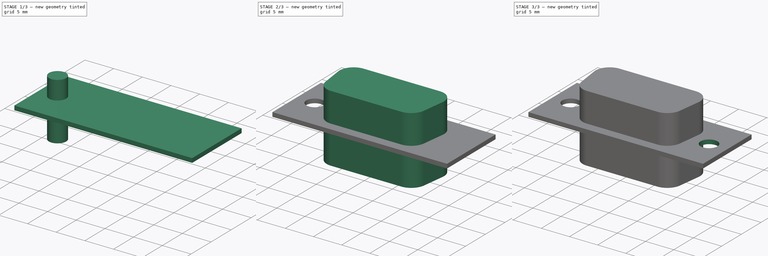
[diagram: build sequence overview — one tinted view per stage of 3, left to right]
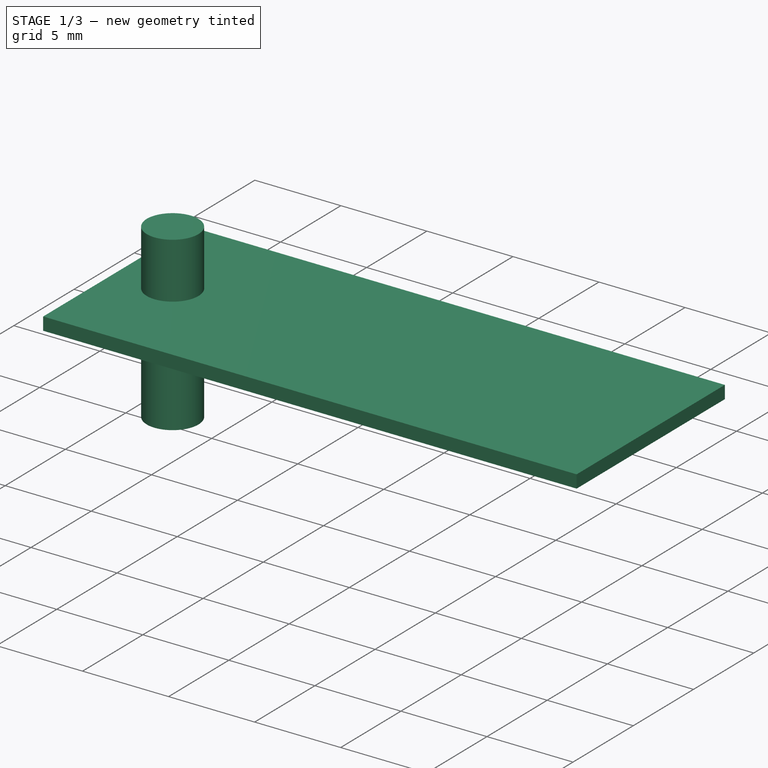
[diagram: stage 1 of 3 — iso view after this stage's code; geometry added in this stage tinted green]
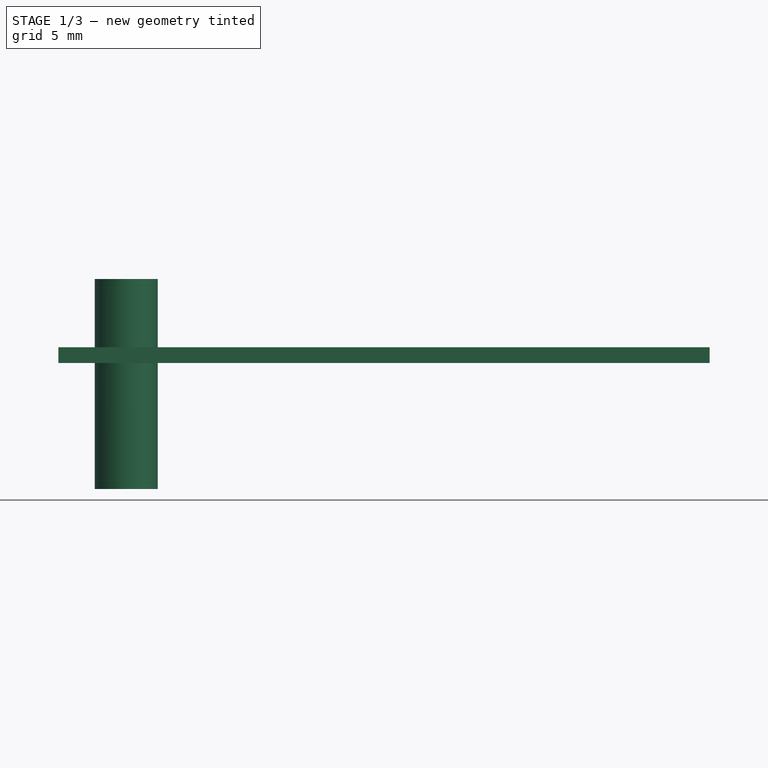
[diagram: stage 1 of 3 — front view after this stage's code; geometry added in this stage tinted green]
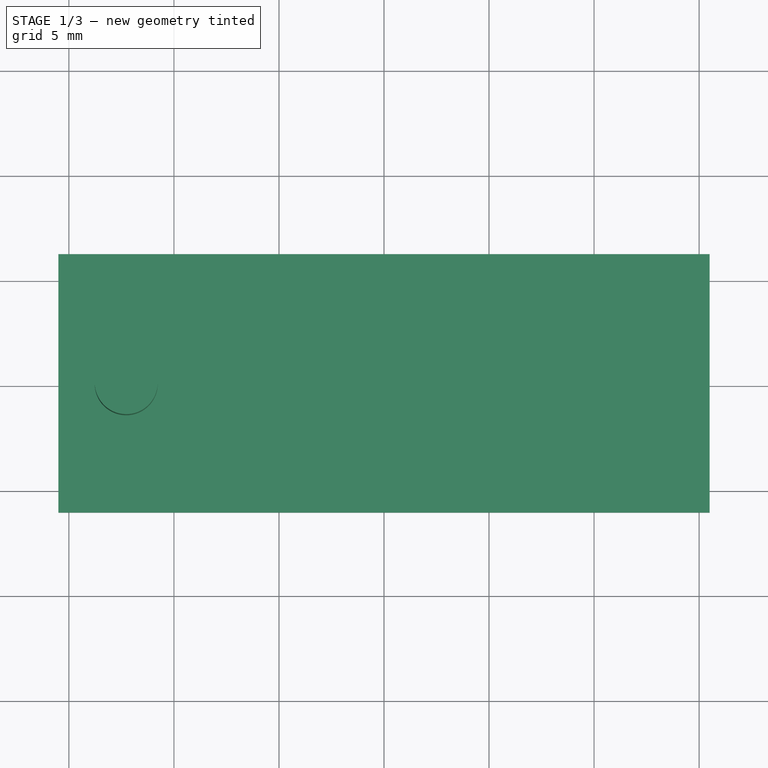
[diagram: stage 1 of 3 — top view after this stage's code; geometry added in this stage tinted green]
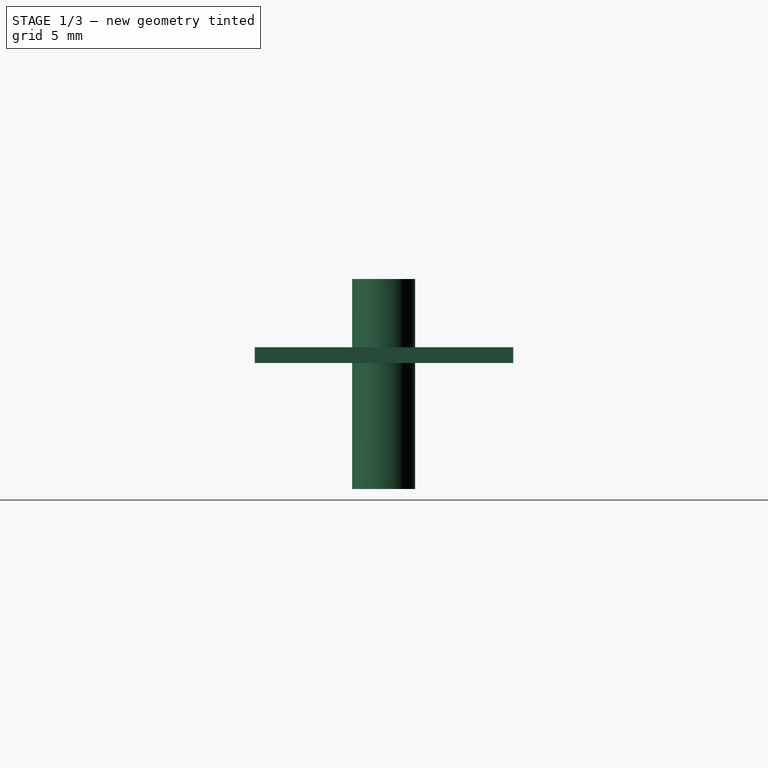
[diagram: stage 1 of 3 — right view after this stage's code; geometry added in this stage tinted green]
FCSTD DOCUMENT
Label: db9
License: CC-BY 3.0
LicenseURL: http://creativecommons.org/licenses/by/3.0/
objects: Part::Cylinder×2, Part::Cut×2, Sketcher::SketchObject×1, Part::Extrusion×1, Part::Box×1, Part::MultiFuse×1
note: 8 computed .brp shape members not serialized (recipe doc carries the construction recipe); baked Part::Feature solids carry a one-line shape summary decoded from their .brp

FEATURE [Part::Box] Box
  Height = 0.75
  Length = 31
  Placement = pos=(-15.5,-6.13,6) rot=(0,0,1;0rad)
  Width = 12.3
FEATURE [Part::Cylinder] Cylinder  label="screw_hole1"
  Angle = 360
  Height = 10
  Placement = pos=(-12.27,0,0) rot=(0,0,1;0rad)
  Radius = 1.5
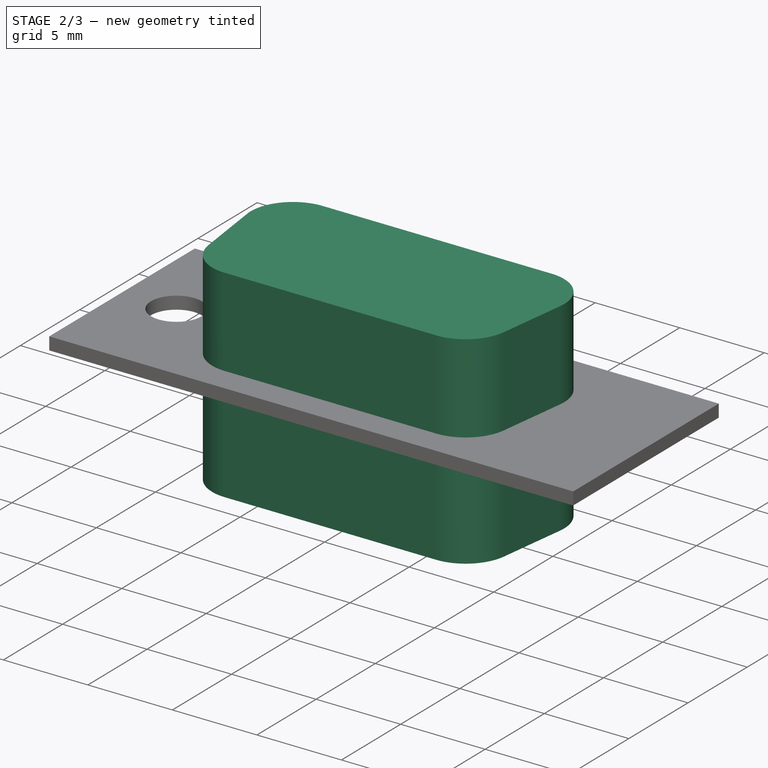
[diagram: stage 2 of 3 — iso view after this stage's code; geometry added in this stage tinted green]
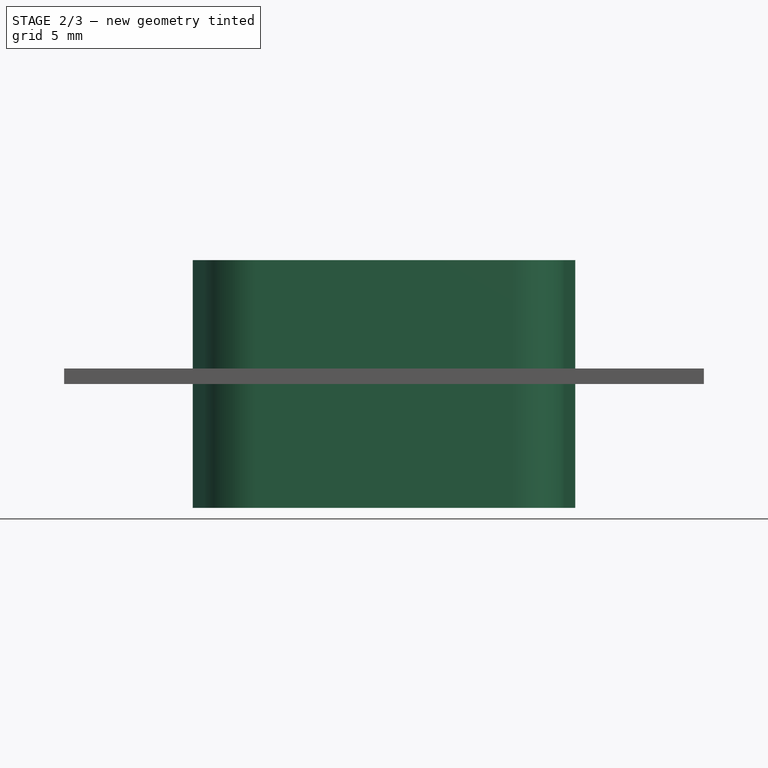
[diagram: stage 2 of 3 — front view after this stage's code; geometry added in this stage tinted green]
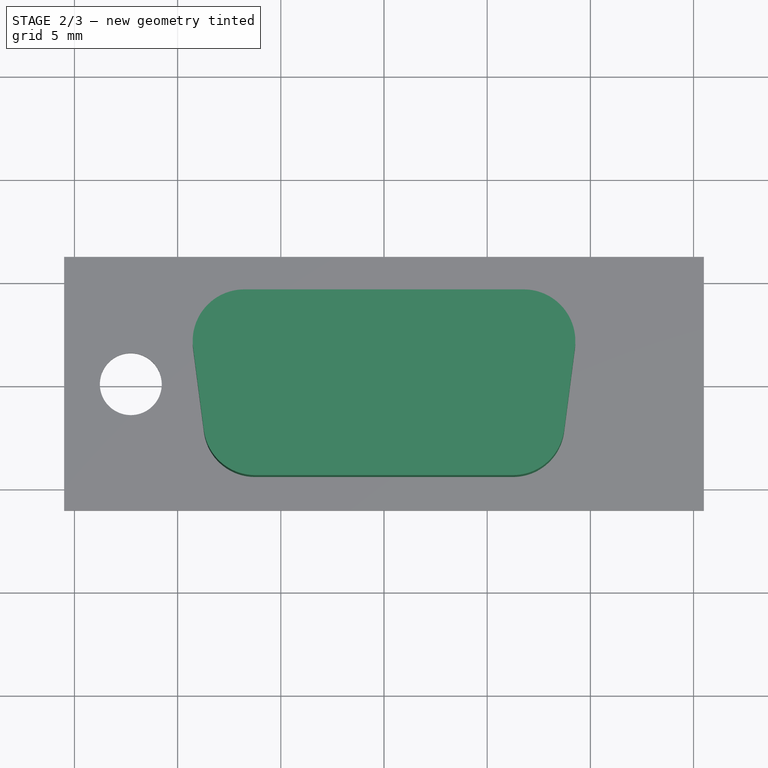
[diagram: stage 2 of 3 — top view after this stage's code; geometry added in this stage tinted green]
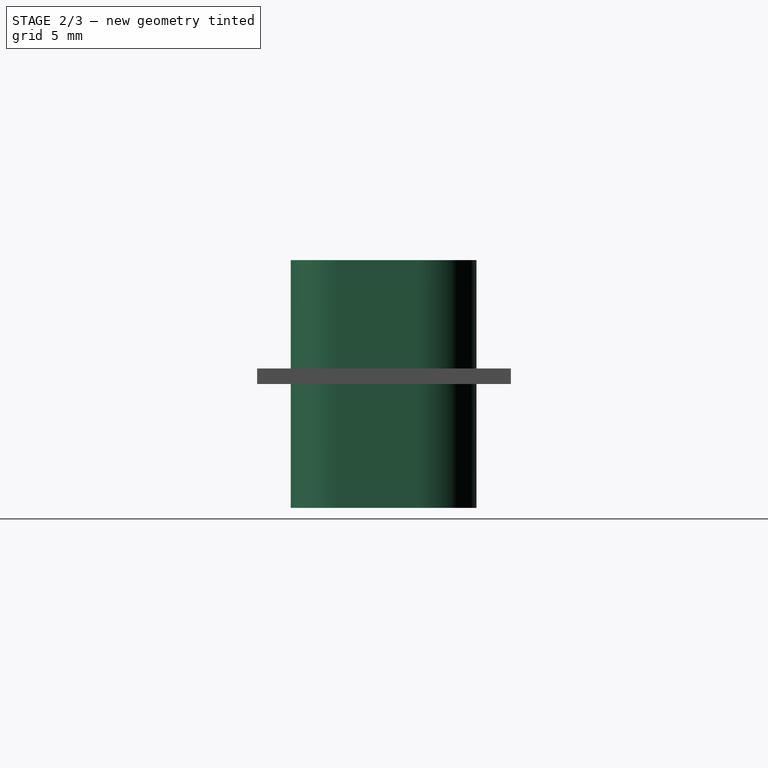
[diagram: stage 2 of 3 — right view after this stage's code; geometry added in this stage tinted green]
FEATURE [Sketcher::SketchObject] Sketch
  sketch-geometry (8):
    g0: LineSegment StartX=-6.77094 StartY=4.5 StartZ=0 EndX=6.77094 EndY=4.5 EndZ=0
    g1: LineSegment StartX=9.25 StartY=1.67714 StartZ=0 EndX=8.72906 EndY=-2.32286 EndZ=0
    g2: LineSegment StartX=6.25 StartY=-4.5 StartZ=0 EndX=-6.25 EndY=-4.5 EndZ=0
    g3: LineSegment StartX=-8.72906 StartY=-2.32286 StartZ=0 EndX=-9.25 EndY=1.67714 EndZ=0
    g4: ArcOfCircle CenterX=-6.77094 CenterY=2 CenterZ=0 NormalX=0 NormalY=0 NormalZ=1 Radius=2.5 StartAngle=1.5708 EndAngle=3.2711
    g5: ArcOfCircle CenterX=6.77094 CenterY=2 CenterZ=0 NormalX=0 NormalY=0 NormalZ=1 Radius=2.5 StartAngle=6.15368 EndAngle=7.85398
    g6: ArcOfCircle CenterX=6.25 CenterY=-2 CenterZ=0 NormalX=0 NormalY=0 NormalZ=1 Radius=2.5 StartAngle=4.71239 EndAngle=6.15368
    g7: ArcOfCircle CenterX=-6.25 CenterY=-2 CenterZ=0 NormalX=0 NormalY=0 NormalZ=1 Radius=2.5 StartAngle=3.2711 EndAngle=4.71239
  constraints (20):
    c: Horizontal(g0)
    c: Horizontal(g2)
    c: Tangent(g0,g4)
    c: Tangent(g3,g4)
    c: Tangent(g0,g5)
    c: Tangent(g1,g5)
    c: Tangent(g1,g6)
    c: Tangent(g2,g6)
    c: Tangent(g2,g7)
    c: Tangent(g3,g7)
    c: Radius(g4) = 2.5
    c: Radius(g5) = 2.5
    c: Radius(g7) = 2.5
    c: Radius(g6) = 2.5
    c: DistanceY(g-1,g0) = 4.5
    c: DistanceY(g-1,g2) = -4.5
    c: DistanceX(g3,g1) = 18.5
    c: DistanceX(g-1,g3) = -9.25
    c: DistanceX(g2,g2) = 12.5
    c: DistanceX(g-1,g2) = -6.25
FEATURE [Part::Extrusion] Extrude
  Base = -> Sketch
  Dir = (0,0,12)
  Solid = true
FEATURE [Part::MultiFuse] Fusion
  Shapes = -> [Box,Extrude]
FEATURE [Part::Cut] Cut
  Base = -> Fusion
  Tool = -> Cylinder
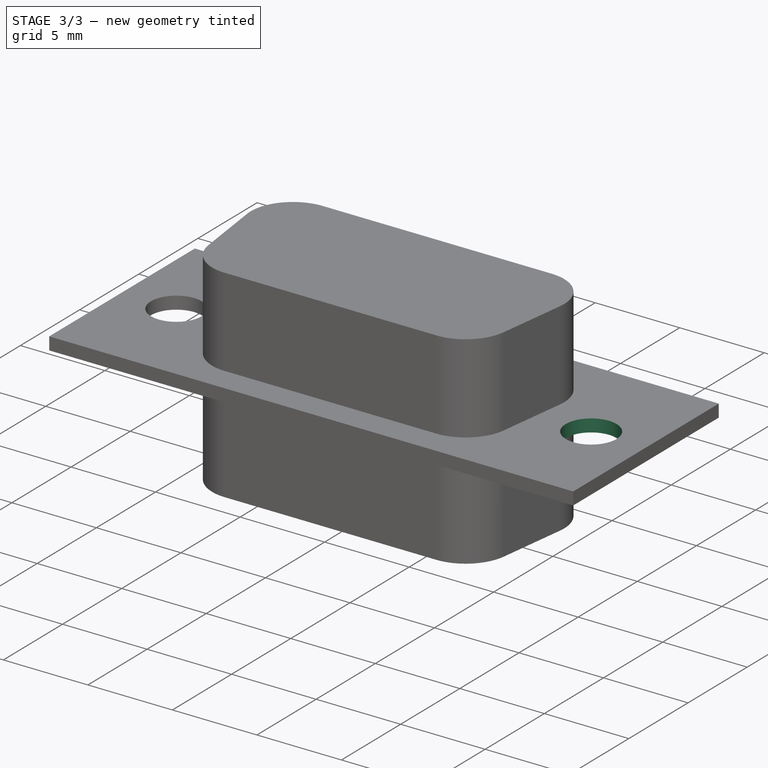
[diagram: stage 3 of 3 — iso view after this stage's code; geometry added in this stage tinted green]
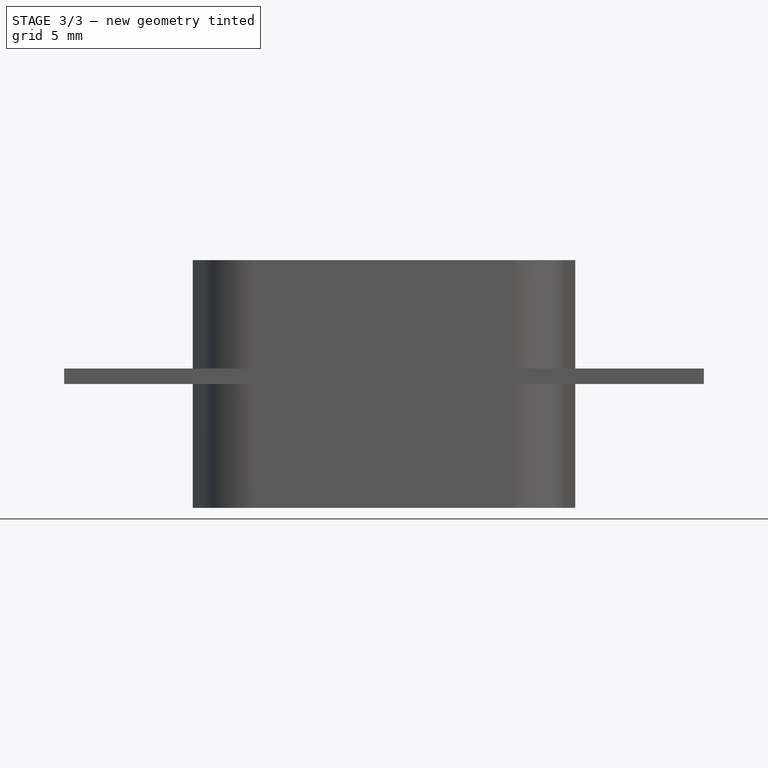
[diagram: stage 3 of 3 — front view after this stage's code; geometry added in this stage tinted green]
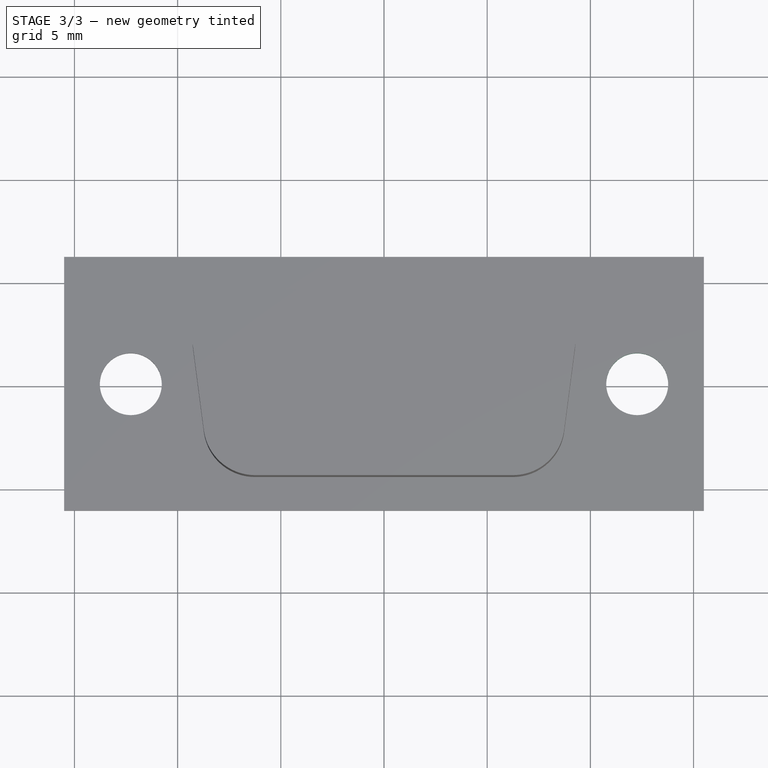
[diagram: stage 3 of 3 — top view after this stage's code; geometry added in this stage tinted green]
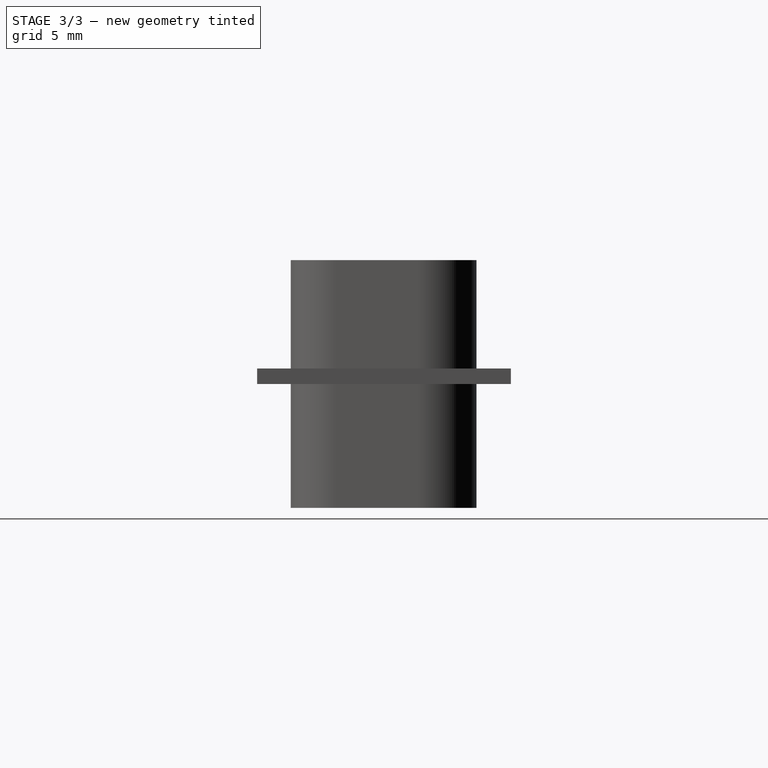
[diagram: stage 3 of 3 — right view after this stage's code; geometry added in this stage tinted green]
FEATURE [Part::Cylinder] Cylinder001  label="screw_hole2"
  Angle = 360
  Height = 10
  Placement = pos=(12.27,0,0) rot=(0,0,1;0rad)
  Radius = 1.5
FEATURE [Part::Cut] Cut001  label="DB9_connector"
  Base = -> Cut
  Tool = -> Cylinder001
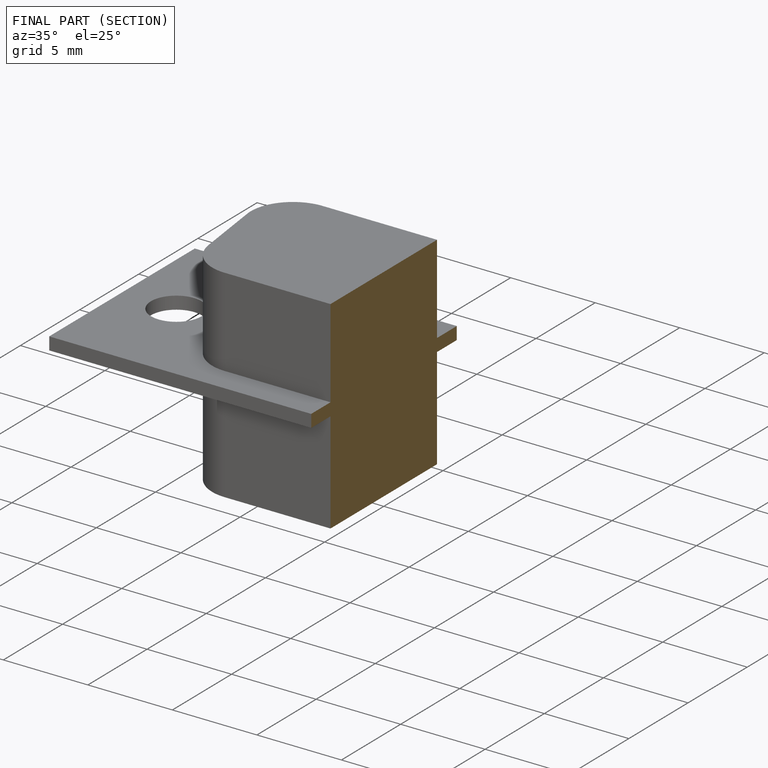
[diagram: finished part — half-section view (interior)]
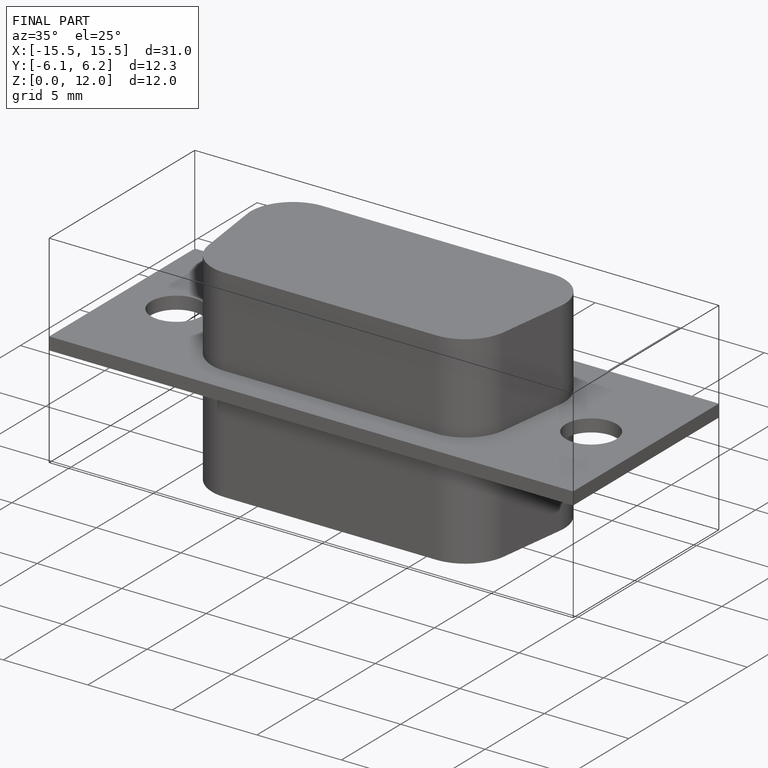
[diagram: finished part — iso view with bounding-box wireframe]
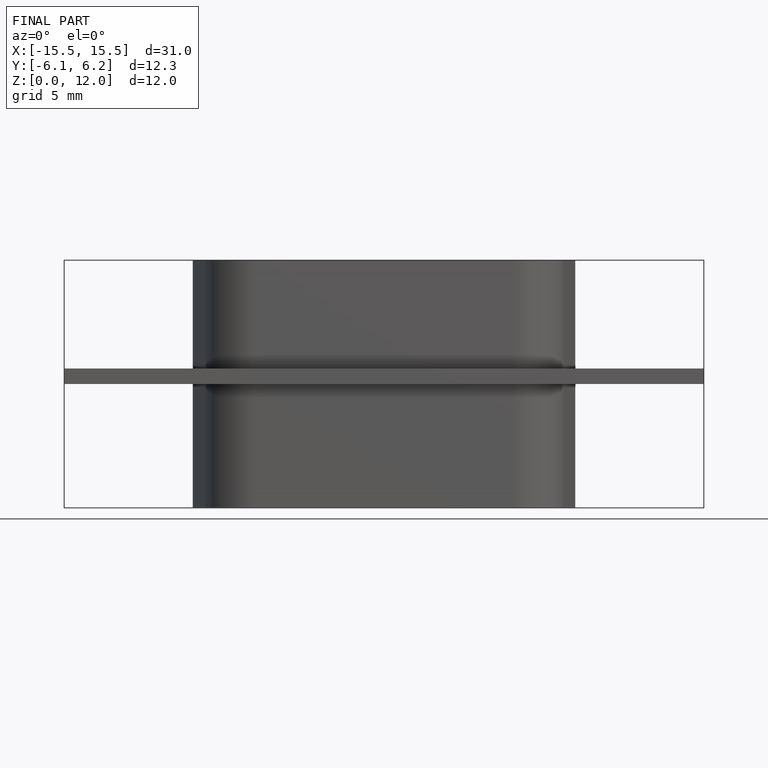
[diagram: finished part — front view with bounding-box wireframe]
